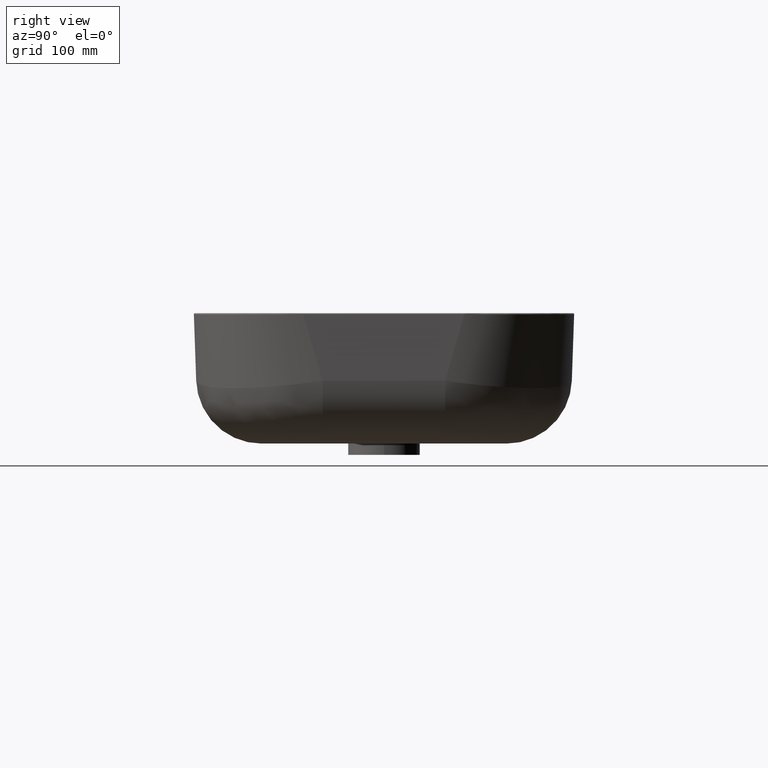
[diagram: clean part render]
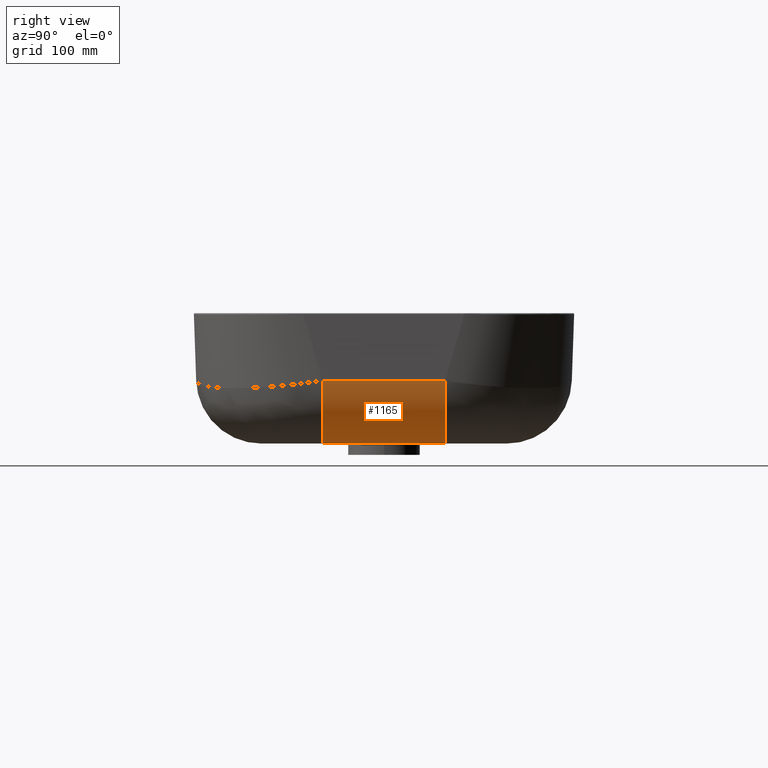
[diagram: same view with one face highlighted and labeled with its STEP entity id]
A machine part, right view. The second image highlights one B-rep face of the part: STEP entity #1165.
In plain terms, the highlighted cylindrical surface (partial cylindrical patch) has radius 60 mm, axis along (-0, 1, 0).
Its self-contained STEP definition (entity closure, byte-faithful):
#55 = VERTEX_POINT ( 'NONE', #711 ) ;
#117 = CARTESIAN_POINT ( 'NONE',  ( 497.8681811725660395, 118.6351736010530118, 0.0000000000000000000 ) ) ;
#155 = EDGE_LOOP ( 'NONE', ( #738, #1712, #3808, #781 ) ) ;
#416 = VERTEX_POINT ( 'NONE', #2948 ) ;
#711 = CARTESIAN_POINT ( 'NONE',  ( 497.8681811725660395, 231.3648263989749978, 0.0000000000000000000 ) ) ;
#738 = ORIENTED_EDGE ( 'NONE', *, *, #2116, .T. ) ;
#781 = ORIENTED_EDGE ( 'NONE', *, *, #2253, .F. ) ;
#952 = CARTESIAN_POINT ( 'NONE',  ( 555.8095076609901071, 118.6351736400439592, 1.403612499147550563E-14 ) ) ;
#961 = VERTEX_POINT ( 'NONE', #5264 ) ;
#1098 = CARTESIAN_POINT ( 'NONE',  ( 497.8681811725660395, 231.3648263989749978, 0.0000000000000000000 ) ) ;
#1165 = ADVANCED_FACE ( 'NONE', ( #2614 ), #2721, .T. ) ;
#1342 = DIRECTION ( 'NONE',  ( -2.148663034194160064E-14, 1.000000000000000000, 2.617665459540870157E-14 ) ) ;
#1442 = CARTESIAN_POINT ( 'NONE',  ( 557.8316307937110423, 118.6351736790330023, 57.90603019785000072 ) ) ;
#1446 = CARTESIAN_POINT ( 'NONE',  ( 497.8681811725660395, 175.0000000000119655, 60.00000000000000000 ) ) ;
#1712 = ORIENTED_EDGE ( 'NONE', *, *, #3392, .T. ) ;
#1720 = CARTESIAN_POINT ( 'NONE',  ( 557.8316307937110423, 231.3648263209950073, 57.90603019785000072 ) ) ;
#1749 = CARTESIAN_POINT ( 'NONE',  ( 555.8095076609896523, 231.3648263599856705, 3.471058639170450631E-13 ) ) ;
#2116 = EDGE_CURVE ( 'NONE', #416, #961, #2672, .T. ) ;
#2166 = CARTESIAN_POINT ( 'NONE',  ( 497.8681811725660395, 231.3648263989749978, 0.0000000000000000000 ) ) ;
#2253 = EDGE_CURVE ( 'NONE', #416, #3819, #3439, .T. ) ;
#2279 = DIRECTION ( 'NONE',  ( 1.000000000000000000, 2.127927463864881371E-14, 0.0000000000000000000 ) ) ;
#2614 = FACE_OUTER_BOUND ( 'NONE', #155, .T. ) ;
#2672 =( BOUNDED_CURVE ( )  B_SPLINE_CURVE ( 2, ( #1442, #952, #117 ),
 .UNSPECIFIED., .F., .T. ) 
 B_SPLINE_CURVE_WITH_KNOTS ( ( 3, 3 ),
 ( 0.0000000000000000000, 129.4608434242879866 ),
 .UNSPECIFIED. ) 
 CURVE ( )  GEOMETRIC_REPRESENTATION_ITEM ( )  RATIONAL_B_SPLINE_CURVE ( ( 1.000000000000000000, 0.7193398003386509698, 1.000000000000000000 ) ) 
 REPRESENTATION_ITEM ( '' )  );
#2721 = CYLINDRICAL_SURFACE ( 'NONE', #3952, 60.00000000000005684 ) ;
#2881 = CARTESIAN_POINT ( 'NONE',  ( 557.8316307937110423, 231.3648263209950073, 57.90603019785000072 ) ) ;
#2948 = CARTESIAN_POINT ( 'NONE',  ( 557.8316307937110423, 118.6351736790330023, 57.90603019785000072 ) ) ;
#3106 = CARTESIAN_POINT ( 'NONE',  ( 557.8316307937110423, 118.6351736790330023, 57.90603019785000072 ) ) ;
#3392 = EDGE_CURVE ( 'NONE', #961, #55, #4280, .T. ) ;
#3439 = B_SPLINE_CURVE_WITH_KNOTS ( 'NONE', 1,
 ( #3106, #4779 ),
 .UNSPECIFIED., .F., .F.,
 ( 2, 2 ),
 ( -16.61683941921450014, 96.11281337870720165 ),
 .UNSPECIFIED. ) ;
#3624 = EDGE_CURVE ( 'NONE', #55, #3819, #5068, .T. ) ;
#3808 = ORIENTED_EDGE ( 'NONE', *, *, #3624, .T. ) ;
#3819 = VERTEX_POINT ( 'NONE', #2881 ) ;
#3952 = AXIS2_PLACEMENT_3D ( 'NONE', #1446, #1342, #2279 ) ;
#4137 = CARTESIAN_POINT ( 'NONE',  ( 497.8681811725660395, 118.6351736010530118, 0.0000000000000000000 ) ) ;
#4280 = B_SPLINE_CURVE_WITH_KNOTS ( 'NONE', 1,
 ( #4137, #1098 ),
 .UNSPECIFIED., .F., .F.,
 ( 2, 2 ),
 ( -16.61683941842320067, 96.11281337791609758 ),
 .UNSPECIFIED. ) ;
#4779 = CARTESIAN_POINT ( 'NONE',  ( 557.8316307937110423, 231.3648263209950073, 57.90603019785000072 ) ) ;
#5068 =( BOUNDED_CURVE ( )  B_SPLINE_CURVE ( 2, ( #2166, #1749, #1720 ),
 .UNSPECIFIED., .F., .F. ) 
 B_SPLINE_CURVE_WITH_KNOTS ( ( 3, 3 ),
 ( 0.0000000000000000000, 129.4608434242869919 ),
 .UNSPECIFIED. ) 
 CURVE ( )  GEOMETRIC_REPRESENTATION_ITEM ( )  RATIONAL_B_SPLINE_CURVE ( ( 1.000000000000000000, 0.7193398003386649586, 1.000000000000000000 ) ) 
 REPRESENTATION_ITEM ( '' )  );
#5264 = CARTESIAN_POINT ( 'NONE',  ( 497.8681811725660395, 118.6351736010530118, 0.0000000000000000000 ) ) ;